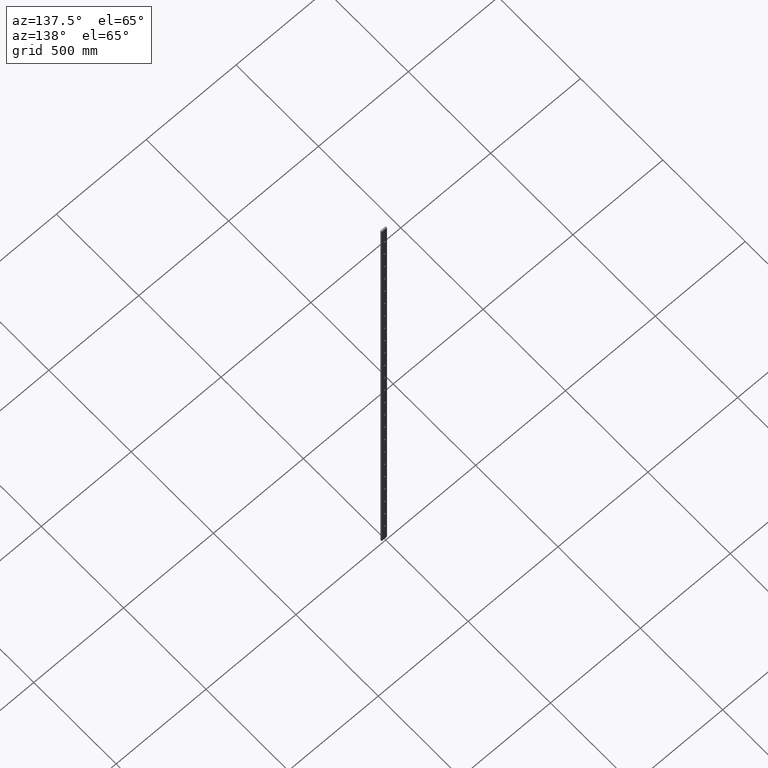
[diagram: clean part render]
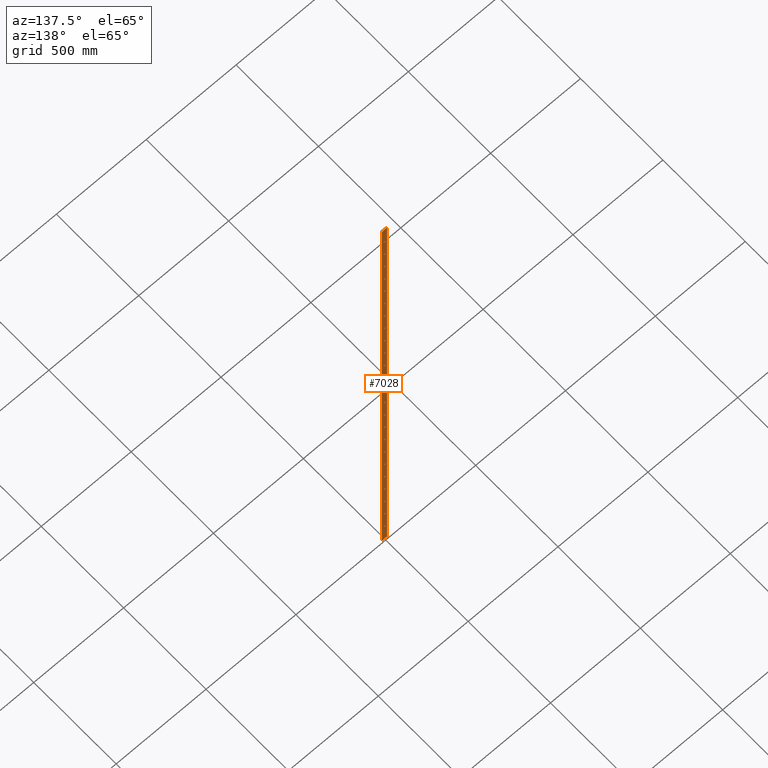
[diagram: same view with one face highlighted and labeled with its STEP entity id]
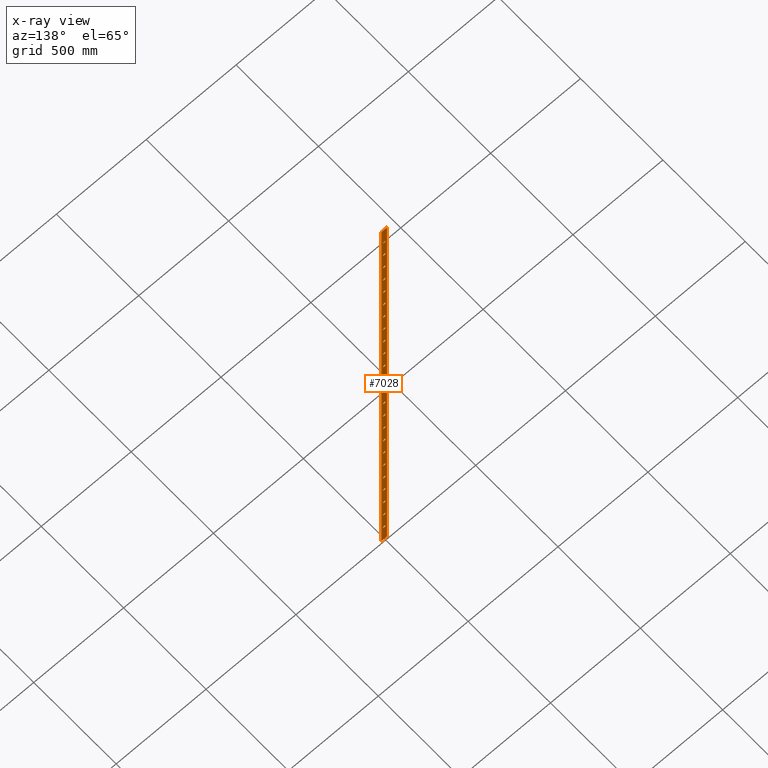
[diagram: x-ray of the same camera — body ghosted, the highlighted face saturated]
A machine part, auxiliary view. The second image highlights one B-rep face of the part: STEP entity #7028.
The next image is the same camera in x-ray: the body ghosted, the highlighted face saturated — about 0% of this face is hidden behind the body in this view.
In plain terms, the highlighted planar face has unit normal (-0, 1, 0).
Its self-contained STEP definition (entity closure, byte-faithful):
#20 = AXIS2_PLACEMENT_3D ( 'NONE', #3667, #4853, #1305 ) ;
#28 = FACE_BOUND ( 'NONE', #2224, .T. ) ;
#47 = CARTESIAN_POINT ( 'NONE',  ( 15.00000000000000000, 7.999999999999998200, -2040.000000000000000 ) ) ;
#53 = CIRCLE ( 'NONE', #4595, 7.500000000000007100 ) ;
#56 = DIRECTION ( 'NONE',  ( -1.156482317317871200E-016, 1.000000000000000000, 0.0000000000000000000 ) ) ;
#61 = VECTOR ( 'NONE', #6620, 1000.000000000000000 ) ;
#102 = CARTESIAN_POINT ( 'NONE',  ( 15.00000000000000000, 7.999999999999998200, -1087.500000000000200 ) ) ;
#105 = VERTEX_POINT ( 'NONE', #4749 ) ;
#125 = AXIS2_PLACEMENT_3D ( 'NONE', #2550, #6496, #3143 ) ;
#131 = EDGE_CURVE ( 'NONE', #7258, #5454, #7231, .T. ) ;
#149 = AXIS2_PLACEMENT_3D ( 'NONE', #4365, #781, #4954 ) ;
#178 = CARTESIAN_POINT ( 'NONE',  ( 15.00000000000000000, 7.999999999999998200, -1799.999999999999800 ) ) ;
#195 = AXIS2_PLACEMENT_3D ( 'NONE', #1118, #1107, #1095 ) ;
#214 = FACE_BOUND ( 'NONE', #3434, .T. ) ;
#228 = DIRECTION ( 'NONE',  ( -1.000000000000000000, -2.312964634635740500E-016, 0.0000000000000000000 ) ) ;
#239 = DIRECTION ( 'NONE',  ( -1.156482317317871200E-016, 1.000000000000000000, 0.0000000000000000000 ) ) ;
#245 = CIRCLE ( 'NONE', #149, 7.500000000000007100 ) ;
#256 = DIRECTION ( 'NONE',  ( -1.000000000000000000, -2.312964634635740500E-016, 0.0000000000000000000 ) ) ;
#261 = VERTEX_POINT ( 'NONE', #4384 ) ;
#340 = CIRCLE ( 'NONE', #6250, 7.500000000000007100 ) ;
#345 = CARTESIAN_POINT ( 'NONE',  ( 15.00000000000000000, 7.999999999999998200, -2887.499999999999500 ) ) ;
#354 = AXIS2_PLACEMENT_3D ( 'NONE', #3833, #3809, #3831 ) ;
#363 = EDGE_CURVE ( 'NONE', #105, #4011, #6400, .T. ) ;
#397 = ORIENTED_EDGE ( 'NONE', *, *, #7241, .F. ) ;
#401 = DIRECTION ( 'NONE',  ( -1.156482317317871200E-016, 1.000000000000000000, 0.0000000000000000000 ) ) ;
#402 = CARTESIAN_POINT ( 'NONE',  ( 15.00000000000000000, 7.999999999999998200, -1207.500000000000200 ) ) ;
#409 = FACE_BOUND ( 'NONE', #1279, .T. ) ;
#416 = CARTESIAN_POINT ( 'NONE',  ( 30.00000000000000000, 8.000000000000000000, 0.0000000000000000000 ) ) ;
#429 = AXIS2_PLACEMENT_3D ( 'NONE', #4636, #1082, #5211 ) ;
#447 = DIRECTION ( 'NONE',  ( -1.000000000000000000, -2.312964634635740500E-016, 0.0000000000000000000 ) ) ;
#450 = ORIENTED_EDGE ( 'NONE', *, *, #6342, .F. ) ;
#458 = CARTESIAN_POINT ( 'NONE',  ( 15.00000000000000200, 7.999999999999998200, -2752.500000000000000 ) ) ;
#473 = AXIS2_PLACEMENT_3D ( 'NONE', #6185, #2807, #6696 ) ;
#491 = EDGE_CURVE ( 'NONE', #5772, #5519, #2891, .T. ) ;
#502 = DIRECTION ( 'NONE',  ( -1.000000000000000000, -2.312964634635740500E-016, 0.0000000000000000000 ) ) ;
#505 = DIRECTION ( 'NONE',  ( -1.156482317317871200E-016, 1.000000000000000000, 0.0000000000000000000 ) ) ;
#510 = CARTESIAN_POINT ( 'NONE',  ( 15.00000000000000000, 7.999999999999998200, -1799.999999999999800 ) ) ;
#515 = ORIENTED_EDGE ( 'NONE', *, *, #6908, .F. ) ;
#522 = DIRECTION ( 'NONE',  ( -1.156482317317871200E-016, 1.000000000000000000, 0.0000000000000000000 ) ) ;
#529 = VERTEX_POINT ( 'NONE', #3793 ) ;
#536 = CARTESIAN_POINT ( 'NONE',  ( 15.00000000000000200, 7.999999999999998200, -472.5000000000000000 ) ) ;
#562 = DIRECTION ( 'NONE',  ( -1.000000000000000000, -2.312964634635740500E-016, 0.0000000000000000000 ) ) ;
#589 = VERTEX_POINT ( 'NONE', #3710 ) ;
#592 = DIRECTION ( 'NONE',  ( -1.000000000000000000, -2.312964634635740500E-016, 0.0000000000000000000 ) ) ;
#594 = FACE_BOUND ( 'NONE', #5563, .T. ) ;
#595 = DIRECTION ( 'NONE',  ( -1.156482317317871200E-016, 1.000000000000000000, 0.0000000000000000000 ) ) ;
#602 = CARTESIAN_POINT ( 'NONE',  ( 15.00000000000000000, 7.999999999999998200, -2280.000000000000500 ) ) ;
#632 = CARTESIAN_POINT ( 'NONE',  ( 15.00000000000000200, 7.999999999999998200, -1072.500000000000000 ) ) ;
#633 = EDGE_LOOP ( 'NONE', ( #6192, #4940 ) ) ;
#639 = AXIS2_PLACEMENT_3D ( 'NONE', #5285, #1769, #5798 ) ;
#657 = DIRECTION ( 'NONE',  ( -1.000000000000000000, -2.312964634635740500E-016, 0.0000000000000000000 ) ) ;
#669 = DIRECTION ( 'NONE',  ( -1.000000000000000000, -2.312964634635740500E-016, 0.0000000000000000000 ) ) ;
#689 = DIRECTION ( 'NONE',  ( -1.156482317317871200E-016, 1.000000000000000000, 0.0000000000000000000 ) ) ;
#694 = CARTESIAN_POINT ( 'NONE',  ( 15.00000000000000000, 7.999999999999998200, -2160.000000000000000 ) ) ;
#728 = EDGE_CURVE ( 'NONE', #7092, #2089, #2135, .T. ) ;
#764 = CARTESIAN_POINT ( 'NONE',  ( 0.0000000000000000000, 7.999999999999996400, 0.0000000000000000000 ) ) ;
#773 = FACE_BOUND ( 'NONE', #1179, .T. ) ;
#774 = DIRECTION ( 'NONE',  ( -1.000000000000000000, -2.312964634635740500E-016, 0.0000000000000000000 ) ) ;
#781 = DIRECTION ( 'NONE',  ( -1.156482317317871200E-016, 1.000000000000000000, 0.0000000000000000000 ) ) ;
#815 = EDGE_LOOP ( 'NONE', ( #2851, #966 ) ) ;
#825 = VERTEX_POINT ( 'NONE', #3259 ) ;
#881 = VERTEX_POINT ( 'NONE', #3111 ) ;
#911 = CIRCLE ( 'NONE', #3983, 7.500000000000007100 ) ;
#922 = CARTESIAN_POINT ( 'NONE',  ( 15.00000000000000000, 7.999999999999998200, -2647.500000000000000 ) ) ;
#956 = VERTEX_POINT ( 'NONE', #2338 ) ;
#966 = ORIENTED_EDGE ( 'NONE', *, *, #2146, .F. ) ;
#982 = ORIENTED_EDGE ( 'NONE', *, *, #4806, .F. ) ;
#1015 = CIRCLE ( 'NONE', #4528, 7.500000000000007100 ) ;
#1018 = EDGE_LOOP ( 'NONE', ( #5216, #2624 ) ) ;
#1037 = AXIS2_PLACEMENT_3D ( 'NONE', #6042, #2630, #6552 ) ;
#1066 = DIRECTION ( 'NONE',  ( -1.156482317317871200E-016, 1.000000000000000000, 0.0000000000000000000 ) ) ;
#1067 = VERTEX_POINT ( 'NONE', #2115 ) ;
#1082 = DIRECTION ( 'NONE',  ( -1.156482317317871200E-016, 1.000000000000000000, 0.0000000000000000000 ) ) ;
#1095 = DIRECTION ( 'NONE',  ( -1.000000000000000000, -2.312964634635740500E-016, 0.0000000000000000000 ) ) ;
#1107 = DIRECTION ( 'NONE',  ( -1.156482317317871200E-016, 1.000000000000000000, 0.0000000000000000000 ) ) ;
#1118 = CARTESIAN_POINT ( 'NONE',  ( 15.00000000000000000, 7.999999999999998200, -600.0000000000000000 ) ) ;
#1124 = DIRECTION ( 'NONE',  ( -1.156482317317871200E-016, 1.000000000000000000, 0.0000000000000000000 ) ) ;
#1148 = VERTEX_POINT ( 'NONE', #1187 ) ;
#1162 = EDGE_CURVE ( 'NONE', #2960, #881, #5495, .T. ) ;
#1179 = EDGE_LOOP ( 'NONE', ( #6286, #6431 ) ) ;
#1187 = CARTESIAN_POINT ( 'NONE',  ( 15.00000000000000200, 7.999999999999998200, -952.4999999999998900 ) ) ;
#1195 = CARTESIAN_POINT ( 'NONE',  ( 15.00000000000000000, 7.999999999999998200, -607.4999999999998900 ) ) ;
#1213 = EDGE_LOOP ( 'NONE', ( #5136, #1229 ) ) ;
#1229 = ORIENTED_EDGE ( 'NONE', *, *, #3451, .F. ) ;
#1242 = CARTESIAN_POINT ( 'NONE',  ( 15.00000000000000000, 7.999999999999998200, -360.0000000000000000 ) ) ;
#1250 = ORIENTED_EDGE ( 'NONE', *, *, #3022, .F. ) ;
#1279 = EDGE_LOOP ( 'NONE', ( #1250, #4990 ) ) ;
#1293 = CIRCLE ( 'NONE', #4988, 7.500000000000007100 ) ;
#1305 = DIRECTION ( 'NONE',  ( -1.000000000000000000, -1.156482317317871200E-016, 0.0000000000000000000 ) ) ;
#1309 = AXIS2_PLACEMENT_3D ( 'NONE', #3333, #7167, #3936 ) ;
#1337 = EDGE_CURVE ( 'NONE', #6118, #3956, #53, .T. ) ;
#1373 = VERTEX_POINT ( 'NONE', #536 ) ;
#1374 = EDGE_CURVE ( 'NONE', #7174, #3640, #1293, .T. ) ;
#1390 = CIRCLE ( 'NONE', #639, 7.500000000000007100 ) ;
#1451 = FACE_BOUND ( 'NONE', #4181, .T. ) ;
#1454 = AXIS2_PLACEMENT_3D ( 'NONE', #6834, #3565, #7354 ) ;
#1456 = DIRECTION ( 'NONE',  ( -1.156482317317871200E-016, 1.000000000000000000, 0.0000000000000000000 ) ) ;
#1490 = VERTEX_POINT ( 'NONE', #6758 ) ;
#1541 = ORIENTED_EDGE ( 'NONE', *, *, #1337, .F. ) ;
#1572 = EDGE_CURVE ( 'NONE', #5314, #4468, #1928, .T. ) ;
#1634 = FACE_BOUND ( 'NONE', #6564, .T. ) ;
#1673 = VERTEX_POINT ( 'NONE', #5576 ) ;
#1677 = DIRECTION ( 'NONE',  ( -1.000000000000000000, -2.312964634635740500E-016, 0.0000000000000000000 ) ) ;
#1708 = EDGE_CURVE ( 'NONE', #1781, #5730, #6308, .T. ) ;
#1714 = DIRECTION ( 'NONE',  ( -1.156482317317871200E-016, 1.000000000000000000, 0.0000000000000000000 ) ) ;
#1729 = CARTESIAN_POINT ( 'NONE',  ( 15.00000000000000000, 7.999999999999998200, -2520.000000000000000 ) ) ;
#1730 = VERTEX_POINT ( 'NONE', #4941 ) ;
#1744 = ORIENTED_EDGE ( 'NONE', *, *, #5120, .F. ) ;
#1769 = DIRECTION ( 'NONE',  ( -1.156482317317871200E-016, 1.000000000000000000, 0.0000000000000000000 ) ) ;
#1773 = EDGE_LOOP ( 'NONE', ( #4756, #2487, #3476, #2879 ) ) ;
#1781 = VERTEX_POINT ( 'NONE', #2854 ) ;
#1784 = ORIENTED_EDGE ( 'NONE', *, *, #1572, .F. ) ;
#1818 = FACE_BOUND ( 'NONE', #3246, .T. ) ;
#1826 = VERTEX_POINT ( 'NONE', #2394 ) ;
#1830 = DIRECTION ( 'NONE',  ( -1.000000000000000000, -2.312964634635740500E-016, 0.0000000000000000000 ) ) ;
#1854 = EDGE_CURVE ( 'NONE', #7165, #529, #3900, .T. ) ;
#1878 = CARTESIAN_POINT ( 'NONE',  ( 15.00000000000000000, 7.999999999999998200, -2407.499999999999500 ) ) ;
#1928 = CIRCLE ( 'NONE', #6734, 7.500000000000007100 ) ;
#1939 = CIRCLE ( 'NONE', #2226, 7.500000000000007100 ) ;
#1941 = CIRCLE ( 'NONE', #6806, 7.500000000000007100 ) ;
#1979 = CARTESIAN_POINT ( 'NONE',  ( 15.00000000000000000, 7.999999999999998200, -120.0000000000000000 ) ) ;
#2000 = FACE_BOUND ( 'NONE', #7093, .T. ) ;
#2027 = CARTESIAN_POINT ( 'NONE',  ( 15.00000000000000000, 7.999999999999998200, -2167.500000000000000 ) ) ;
#2045 = CARTESIAN_POINT ( 'NONE',  ( 15.00000000000000000, 7.999999999999998200, -1447.500000000000000 ) ) ;
#2071 = DIRECTION ( 'NONE',  ( -1.156482317317871200E-016, 1.000000000000000000, 0.0000000000000000000 ) ) ;
#2089 = VERTEX_POINT ( 'NONE', #2785 ) ;
#2107 = AXIS2_PLACEMENT_3D ( 'NONE', #4661, #4613, #4653 ) ;
#2112 = EDGE_LOOP ( 'NONE', ( #6547, #3999 ) ) ;
#2115 = CARTESIAN_POINT ( 'NONE',  ( 15.00000000000000200, 7.999999999999998200, -1672.500000000000000 ) ) ;
#2118 = CARTESIAN_POINT ( 'NONE',  ( 15.00000000000000000, 7.999999999999998200, -1687.500000000000200 ) ) ;
#2135 = CIRCLE ( 'NONE', #3162, 7.500000000000007100 ) ;
#2146 = EDGE_CURVE ( 'NONE', #5730, #1781, #2978, .T. ) ;
#2169 = CARTESIAN_POINT ( 'NONE',  ( 0.0000000000000000000, 7.999999999999996400, -3000.000000000000000 ) ) ;
#2202 = DIRECTION ( 'NONE',  ( -1.156482317317871200E-016, 1.000000000000000000, 0.0000000000000000000 ) ) ;
#2207 = DIRECTION ( 'NONE',  ( -1.000000000000000000, -2.312964634635740500E-016, 0.0000000000000000000 ) ) ;
#2224 = EDGE_LOOP ( 'NONE', ( #397, #7334 ) ) ;
#2225 = DIRECTION ( 'NONE',  ( -1.156482317317871200E-016, 1.000000000000000000, 0.0000000000000000000 ) ) ;
#2226 = AXIS2_PLACEMENT_3D ( 'NONE', #7077, #3836, #256 ) ;
#2229 = ORIENTED_EDGE ( 'NONE', *, *, #1374, .F. ) ;
#2245 = CARTESIAN_POINT ( 'NONE',  ( 15.00000000000000000, 7.999999999999998200, -720.0000000000000000 ) ) ;
#2276 = VERTEX_POINT ( 'NONE', #764 ) ;
#2290 = EDGE_CURVE ( 'NONE', #4468, #5314, #5001, .T. ) ;
#2294 = ORIENTED_EDGE ( 'NONE', *, *, #4393, .F. ) ;
#2315 = AXIS2_PLACEMENT_3D ( 'NONE', #2245, #2225, #2207 ) ;
#2322 = CIRCLE ( 'NONE', #4673, 7.500000000000007100 ) ;
#2326 = VERTEX_POINT ( 'NONE', #458 ) ;
#2329 = CIRCLE ( 'NONE', #7096, 7.500000000000007100 ) ;
#2338 = CARTESIAN_POINT ( 'NONE',  ( 15.00000000000000200, 7.999999999999998200, -1312.499999999999800 ) ) ;
#2371 = EDGE_CURVE ( 'NONE', #3183, #1673, #6231, .T. ) ;
#2394 = CARTESIAN_POINT ( 'NONE',  ( 15.00000000000000400, 7.999999999999998200, -2392.500000000000000 ) ) ;
#2419 = EDGE_LOOP ( 'NONE', ( #5472, #5534 ) ) ;
#2453 = CARTESIAN_POINT ( 'NONE',  ( 15.00000000000000000, 7.999999999999998200, -2287.500000000000000 ) ) ;
#2456 = EDGE_CURVE ( 'NONE', #4675, #7363, #245, .T. ) ;
#2459 = AXIS2_PLACEMENT_3D ( 'NONE', #4207, #4144, #4082 ) ;
#2487 = ORIENTED_EDGE ( 'NONE', *, *, #5973, .F. ) ;
#2533 = EDGE_CURVE ( 'NONE', #1148, #4031, #3057, .T. ) ;
#2550 = CARTESIAN_POINT ( 'NONE',  ( 15.00000000000000000, 7.999999999999998200, -1080.000000000000000 ) ) ;
#2596 = DIRECTION ( 'NONE',  ( -1.000000000000000000, -2.312964634635740500E-016, 0.0000000000000000000 ) ) ;
#2602 = CARTESIAN_POINT ( 'NONE',  ( 15.00000000000000200, 7.999999999999998200, -2032.500000000000200 ) ) ;
#2605 = CIRCLE ( 'NONE', #5542, 7.500000000000007100 ) ;
#2608 = VECTOR ( 'NONE', #2781, 1000.000000000000000 ) ;
#2615 = ORIENTED_EDGE ( 'NONE', *, *, #5716, .F. ) ;
#2616 = EDGE_CURVE ( 'NONE', #4466, #1373, #5729, .T. ) ;
#2624 = ORIENTED_EDGE ( 'NONE', *, *, #4238, .F. ) ;
#2630 = DIRECTION ( 'NONE',  ( -1.156482317317871200E-016, 1.000000000000000000, 0.0000000000000000000 ) ) ;
#2651 = VERTEX_POINT ( 'NONE', #5750 ) ;
#2655 = DIRECTION ( 'NONE',  ( -1.156482317317871200E-016, 1.000000000000000000, 0.0000000000000000000 ) ) ;
#2688 = ORIENTED_EDGE ( 'NONE', *, *, #491, .F. ) ;
#2730 = EDGE_CURVE ( 'NONE', #1730, #2651, #6474, .T. ) ;
#2752 = ORIENTED_EDGE ( 'NONE', *, *, #131, .F. ) ;
#2755 = DIRECTION ( 'NONE',  ( -1.156482317317871200E-016, 1.000000000000000000, 0.0000000000000000000 ) ) ;
#2781 = DIRECTION ( 'NONE',  ( 0.0000000000000000000, 0.0000000000000000000, 1.000000000000000000 ) ) ;
#2785 = CARTESIAN_POINT ( 'NONE',  ( 15.00000000000000000, 7.999999999999998200, -2527.500000000000000 ) ) ;
#2807 = DIRECTION ( 'NONE',  ( -1.156482317317871200E-016, 1.000000000000000000, 0.0000000000000000000 ) ) ;
#2851 = ORIENTED_EDGE ( 'NONE', *, *, #1708, .F. ) ;
#2854 = CARTESIAN_POINT ( 'NONE',  ( 15.00000000000000000, 7.999999999999998200, -727.5000000000000000 ) ) ;
#2860 = CARTESIAN_POINT ( 'NONE',  ( 15.00000000000000000, 7.999999999999998200, -1567.500000000000200 ) ) ;
#2879 = ORIENTED_EDGE ( 'NONE', *, *, #3845, .T. ) ;
#2891 = CIRCLE ( 'NONE', #354, 7.500000000000007100 ) ;
#2915 = EDGE_CURVE ( 'NONE', #261, #6687, #340, .T. ) ;
#2920 = DIRECTION ( 'NONE',  ( -1.156482317317871200E-016, 1.000000000000000000, 0.0000000000000000000 ) ) ;
#2960 = VERTEX_POINT ( 'NONE', #1195 ) ;
#2978 = CIRCLE ( 'NONE', #2315, 7.500000000000007100 ) ;
#2981 = CIRCLE ( 'NONE', #3332, 7.500000000000007100 ) ;
#2994 = AXIS2_PLACEMENT_3D ( 'NONE', #4671, #1124, #5240 ) ;
#3022 = EDGE_CURVE ( 'NONE', #1673, #3183, #7182, .T. ) ;
#3029 = FACE_BOUND ( 'NONE', #2419, .T. ) ;
#3051 = DIRECTION ( 'NONE',  ( -1.156482317317871200E-016, 1.000000000000000000, 0.0000000000000000000 ) ) ;
#3057 = CIRCLE ( 'NONE', #7053, 7.500000000000007100 ) ;
#3070 = DIRECTION ( 'NONE',  ( -1.156482317317871200E-016, 1.000000000000000000, 0.0000000000000000000 ) ) ;
#3073 = CIRCLE ( 'NONE', #4762, 7.500000000000007100 ) ;
#3094 = AXIS2_PLACEMENT_3D ( 'NONE', #6600, #3274, #7108 ) ;
#3101 = CARTESIAN_POINT ( 'NONE',  ( 15.00000000000000000, 7.999999999999998200, -2520.000000000000000 ) ) ;
#3111 = CARTESIAN_POINT ( 'NONE',  ( 15.00000000000000200, 7.999999999999998200, -592.5000000000000000 ) ) ;
#3122 = CARTESIAN_POINT ( 'NONE',  ( 15.00000000000000000, 7.999999999999998200, -2040.000000000000000 ) ) ;
#3133 = ORIENTED_EDGE ( 'NONE', *, *, #2290, .F. ) ;
#3143 = DIRECTION ( 'NONE',  ( -1.000000000000000000, -2.312964634635740500E-016, 0.0000000000000000000 ) ) ;
#3145 = CARTESIAN_POINT ( 'NONE',  ( 15.00000000000000000, 7.999999999999998200, -1200.000000000000200 ) ) ;
#3148 = AXIS2_PLACEMENT_3D ( 'NONE', #3976, #401, #4573 ) ;
#3162 = AXIS2_PLACEMENT_3D ( 'NONE', #1729, #1714, #1677 ) ;
#3183 = VERTEX_POINT ( 'NONE', #2602 ) ;
#3203 = EDGE_CURVE ( 'NONE', #5454, #7258, #3610, .T. ) ;
#3214 = ORIENTED_EDGE ( 'NONE', *, *, #2456, .F. ) ;
#3215 = FACE_BOUND ( 'NONE', #3622, .T. ) ;
#3246 = EDGE_LOOP ( 'NONE', ( #1744, #3214 ) ) ;
#3259 = CARTESIAN_POINT ( 'NONE',  ( 15.00000000000000000, 7.999999999999998200, -247.5000000000000000 ) ) ;
#3274 = DIRECTION ( 'NONE',  ( -1.156482317317871200E-016, 1.000000000000000000, 0.0000000000000000000 ) ) ;
#3304 = VERTEX_POINT ( 'NONE', #345 ) ;
#3311 = CARTESIAN_POINT ( 'NONE',  ( 15.00000000000000000, 7.999999999999998200, -847.4999999999998900 ) ) ;
#3312 = CARTESIAN_POINT ( 'NONE',  ( 15.00000000000000000, 7.999999999999998200, -480.0000000000000000 ) ) ;
#3332 = AXIS2_PLACEMENT_3D ( 'NONE', #6061, #2655, #6580 ) ;
#3333 = CARTESIAN_POINT ( 'NONE',  ( 15.00000000000000000, 7.999999999999998200, -2280.000000000000500 ) ) ;
#3346 = EDGE_CURVE ( 'NONE', #5543, #3304, #2322, .T. ) ;
#3348 = ORIENTED_EDGE ( 'NONE', *, *, #3682, .F. ) ;
#3398 = FACE_BOUND ( 'NONE', #4826, .T. ) ;
#3434 = EDGE_LOOP ( 'NONE', ( #2752, #4788 ) ) ;
#3451 = EDGE_CURVE ( 'NONE', #5464, #825, #1941, .T. ) ;
#3461 = DIRECTION ( 'NONE',  ( -1.156482317317871200E-016, 1.000000000000000000, 0.0000000000000000000 ) ) ;
#3468 = DIRECTION ( 'NONE',  ( -1.156482317317871200E-016, 1.000000000000000000, 0.0000000000000000000 ) ) ;
#3476 = ORIENTED_EDGE ( 'NONE', *, *, #363, .T. ) ;
#3493 = CIRCLE ( 'NONE', #6509, 7.500000000000007100 ) ;
#3511 = EDGE_LOOP ( 'NONE', ( #515, #6840 ) ) ;
#3540 = EDGE_CURVE ( 'NONE', #5519, #5772, #4730, .T. ) ;
#3556 = CARTESIAN_POINT ( 'NONE',  ( 15.00000000000000200, 7.999999999999998200, -2272.500000000000500 ) ) ;
#3565 = DIRECTION ( 'NONE',  ( -1.156482317317871200E-016, 1.000000000000000000, 0.0000000000000000000 ) ) ;
#3593 = FACE_BOUND ( 'NONE', #3511, .T. ) ;
#3610 = CIRCLE ( 'NONE', #3094, 7.500000000000007100 ) ;
#3614 = CIRCLE ( 'NONE', #3835, 7.500000000000007100 ) ;
#3620 = VECTOR ( 'NONE', #6724, 1000.000000000000000 ) ;
#3622 = EDGE_LOOP ( 'NONE', ( #2688, #7377 ) ) ;
#3638 = AXIS2_PLACEMENT_3D ( 'NONE', #1242, #5346, #1830 ) ;
#3640 = VERTEX_POINT ( 'NONE', #4973 ) ;
#3651 = CARTESIAN_POINT ( 'NONE',  ( 15.00000000000000000, 7.999999999999998200, -1560.000000000000000 ) ) ;
#3667 = CARTESIAN_POINT ( 'NONE',  ( 30.00000000000000000, 8.000000000000000000, -3000.000000000000000 ) ) ;
#3678 = AXIS2_PLACEMENT_3D ( 'NONE', #6759, #3468, #7281 ) ;
#3682 = EDGE_CURVE ( 'NONE', #5754, #1067, #2981, .T. ) ;
#3690 = DIRECTION ( 'NONE',  ( -1.000000000000000000, -2.312964634635740500E-016, 0.0000000000000000000 ) ) ;
#3710 = CARTESIAN_POINT ( 'NONE',  ( 15.00000000000000000, 7.999999999999998200, -1327.500000000000000 ) ) ;
#3716 = CARTESIAN_POINT ( 'NONE',  ( 15.00000000000000200, 7.999999999999998200, -1792.499999999999800 ) ) ;
#3718 = DIRECTION ( 'NONE',  ( -1.000000000000000000, -2.312964634635740500E-016, 0.0000000000000000000 ) ) ;
#3745 = DIRECTION ( 'NONE',  ( -1.000000000000000000, -2.312964634635740500E-016, 0.0000000000000000000 ) ) ;
#3750 = EDGE_CURVE ( 'NONE', #1373, #4466, #1015, .T. ) ;
#3760 = EDGE_CURVE ( 'NONE', #825, #5464, #6869, .T. ) ;
#3775 = FACE_BOUND ( 'NONE', #4062, .T. ) ;
#3793 = CARTESIAN_POINT ( 'NONE',  ( 15.00000000000000200, 7.999999999999998200, -1912.499999999999800 ) ) ;
#3797 = CARTESIAN_POINT ( 'NONE',  ( 15.00000000000000000, 7.999999999999998200, -127.5000000000000000 ) ) ;
#3809 = DIRECTION ( 'NONE',  ( -1.156482317317871200E-016, 1.000000000000000000, 0.0000000000000000000 ) ) ;
#3815 = DIRECTION ( 'NONE',  ( -1.156482317317871200E-016, 1.000000000000000000, 0.0000000000000000000 ) ) ;
#3825 = AXIS2_PLACEMENT_3D ( 'NONE', #3145, #6996, #3745 ) ;
#3826 = CARTESIAN_POINT ( 'NONE',  ( 15.00000000000000000, 7.999999999999998200, -2760.000000000000000 ) ) ;
#3831 = DIRECTION ( 'NONE',  ( -1.000000000000000000, -2.312964634635740500E-016, 0.0000000000000000000 ) ) ;
#3833 = CARTESIAN_POINT ( 'NONE',  ( 15.00000000000000000, 7.999999999999998200, -1080.000000000000000 ) ) ;
#3835 = AXIS2_PLACEMENT_3D ( 'NONE', #178, #4360, #774 ) ;
#3836 = DIRECTION ( 'NONE',  ( -1.156482317317871200E-016, 1.000000000000000000, 0.0000000000000000000 ) ) ;
#3845 = EDGE_CURVE ( 'NONE', #4011, #2276, #6561, .T. ) ;
#3900 = CIRCLE ( 'NONE', #4845, 7.500000000000007100 ) ;
#3921 = DIRECTION ( 'NONE',  ( -1.000000000000000000, -2.312964634635740500E-016, 0.0000000000000000000 ) ) ;
#3928 = CARTESIAN_POINT ( 'NONE',  ( 30.00000000000000000, 8.000000000000000000, 0.0000000000000000000 ) ) ;
#3936 = DIRECTION ( 'NONE',  ( -1.000000000000000000, -2.312964634635740500E-016, 0.0000000000000000000 ) ) ;
#3956 = VERTEX_POINT ( 'NONE', #3556 ) ;
#3972 = AXIS2_PLACEMENT_3D ( 'NONE', #4616, #1066, #5201 ) ;
#3976 = CARTESIAN_POINT ( 'NONE',  ( 15.00000000000000000, 7.999999999999998200, -2400.000000000000000 ) ) ;
#3983 = AXIS2_PLACEMENT_3D ( 'NONE', #5667, #2202, #6198 ) ;
#3999 = ORIENTED_EDGE ( 'NONE', *, *, #4400, .F. ) ;
#4011 = VERTEX_POINT ( 'NONE', #5843 ) ;
#4022 = DIRECTION ( 'NONE',  ( -1.156482317317871200E-016, 1.000000000000000000, 0.0000000000000000000 ) ) ;
#4025 = CARTESIAN_POINT ( 'NONE',  ( 15.00000000000000200, 7.999999999999998200, -232.4999999999999700 ) ) ;
#4031 = VERTEX_POINT ( 'NONE', #6383 ) ;
#4062 = EDGE_LOOP ( 'NONE', ( #4089, #6026 ) ) ;
#4082 = DIRECTION ( 'NONE',  ( -1.000000000000000000, -2.312964634635740500E-016, 0.0000000000000000000 ) ) ;
#4089 = ORIENTED_EDGE ( 'NONE', *, *, #7035, .F. ) ;
#4100 = CARTESIAN_POINT ( 'NONE',  ( 15.00000000000000000, 7.999999999999998200, -240.0000000000000000 ) ) ;
#4116 = DIRECTION ( 'NONE',  ( -1.000000000000000000, -1.156482317317871500E-016, 0.0000000000000000000 ) ) ;
#4126 = DIRECTION ( 'NONE',  ( -1.156482317317871200E-016, 1.000000000000000000, 0.0000000000000000000 ) ) ;
#4128 = ORIENTED_EDGE ( 'NONE', *, *, #4617, .F. ) ;
#4139 = CIRCLE ( 'NONE', #4172, 7.500000000000007100 ) ;
#4143 = VERTEX_POINT ( 'NONE', #1878 ) ;
#4144 = DIRECTION ( 'NONE',  ( -1.156482317317871200E-016, 1.000000000000000000, 0.0000000000000000000 ) ) ;
#4146 = CIRCLE ( 'NONE', #473, 7.500000000000007100 ) ;
#4172 = AXIS2_PLACEMENT_3D ( 'NONE', #7335, #4126, #562 ) ;
#4181 = EDGE_LOOP ( 'NONE', ( #7374, #2294 ) ) ;
#4207 = CARTESIAN_POINT ( 'NONE',  ( 15.00000000000000000, 7.999999999999998200, -720.0000000000000000 ) ) ;
#4226 = DIRECTION ( 'NONE',  ( -1.156482317317871200E-016, 1.000000000000000000, 0.0000000000000000000 ) ) ;
#4238 = EDGE_CURVE ( 'NONE', #881, #2960, #911, .T. ) ;
#4242 = DIRECTION ( 'NONE',  ( -1.000000000000000000, -2.312964634635740500E-016, 0.0000000000000000000 ) ) ;
#4286 = CARTESIAN_POINT ( 'NONE',  ( 30.00000000000000000, 8.000000000000000000, -3000.000000000000000 ) ) ;
#4360 = DIRECTION ( 'NONE',  ( -1.156482317317871200E-016, 1.000000000000000000, 0.0000000000000000000 ) ) ;
#4365 = CARTESIAN_POINT ( 'NONE',  ( 15.00000000000000000, 7.999999999999998200, -1560.000000000000000 ) ) ;
#4384 = CARTESIAN_POINT ( 'NONE',  ( 15.00000000000000400, 7.999999999999998200, -112.4999999999999900 ) ) ;
#4393 = EDGE_CURVE ( 'NONE', #2651, #1730, #1390, .T. ) ;
#4400 = EDGE_CURVE ( 'NONE', #2326, #5111, #5813, .T. ) ;
#4415 = DIRECTION ( 'NONE',  ( -1.000000000000000000, -2.312964634635740500E-016, 0.0000000000000000000 ) ) ;
#4417 = FACE_OUTER_BOUND ( 'NONE', #1773, .T. ) ;
#4428 = CARTESIAN_POINT ( 'NONE',  ( 15.00000000000000200, 7.999999999999998200, -712.4999999999998900 ) ) ;
#4433 = EDGE_LOOP ( 'NONE', ( #6395, #4635 ) ) ;
#4466 = VERTEX_POINT ( 'NONE', #5826 ) ;
#4468 = VERTEX_POINT ( 'NONE', #6352 ) ;
#4528 = AXIS2_PLACEMENT_3D ( 'NONE', #3312, #7152, #3921 ) ;
#4573 = DIRECTION ( 'NONE',  ( -1.000000000000000000, -2.312964634635740500E-016, 0.0000000000000000000 ) ) ;
#4595 = AXIS2_PLACEMENT_3D ( 'NONE', #602, #595, #592 ) ;
#4600 = FACE_BOUND ( 'NONE', #1018, .T. ) ;
#4613 = DIRECTION ( 'NONE',  ( -1.156482317317871200E-016, 1.000000000000000000, 0.0000000000000000000 ) ) ;
#4616 = CARTESIAN_POINT ( 'NONE',  ( 15.00000000000000000, 7.999999999999998200, -1319.999999999999800 ) ) ;
#4617 = EDGE_CURVE ( 'NONE', #3640, #7174, #3614, .T. ) ;
#4635 = ORIENTED_EDGE ( 'NONE', *, *, #5684, .F. ) ;
#4636 = CARTESIAN_POINT ( 'NONE',  ( 15.00000000000000000, 7.999999999999998200, -480.0000000000000000 ) ) ;
#4639 = CIRCLE ( 'NONE', #3148, 7.500000000000007100 ) ;
#4653 = DIRECTION ( 'NONE',  ( -1.000000000000000000, -2.312964634635740500E-016, 0.0000000000000000000 ) ) ;
#4661 = CARTESIAN_POINT ( 'NONE',  ( 15.00000000000000000, 7.999999999999998200, -1440.000000000000000 ) ) ;
#4671 = CARTESIAN_POINT ( 'NONE',  ( 15.00000000000000000, 7.999999999999998200, -1200.000000000000200 ) ) ;
#4673 = AXIS2_PLACEMENT_3D ( 'NONE', #7243, #4022, #447 ) ;
#4675 = VERTEX_POINT ( 'NONE', #7056 ) ;
#4689 = DIRECTION ( 'NONE',  ( -1.000000000000000000, -2.312964634635740500E-016, 0.0000000000000000000 ) ) ;
#4730 = CIRCLE ( 'NONE', #125, 7.500000000000007100 ) ;
#4749 = CARTESIAN_POINT ( 'NONE',  ( 30.00000000000000000, 8.000000000000000000, -3000.000000000000000 ) ) ;
#4756 = ORIENTED_EDGE ( 'NONE', *, *, #5395, .F. ) ;
#4762 = AXIS2_PLACEMENT_3D ( 'NONE', #6750, #3461, #7267 ) ;
#4788 = ORIENTED_EDGE ( 'NONE', *, *, #3203, .F. ) ;
#4794 = FACE_BOUND ( 'NONE', #633, .T. ) ;
#4806 = EDGE_CURVE ( 'NONE', #6687, #261, #2329, .T. ) ;
#4826 = EDGE_LOOP ( 'NONE', ( #3348, #5532 ) ) ;
#4845 = AXIS2_PLACEMENT_3D ( 'NONE', #5672, #5663, #5646 ) ;
#4853 = DIRECTION ( 'NONE',  ( -1.156482317317871200E-016, 1.000000000000000000, 0.0000000000000000000 ) ) ;
#4896 = CARTESIAN_POINT ( 'NONE',  ( 15.00000000000000200, 7.999999999999998200, -1192.500000000000200 ) ) ;
#4936 = EDGE_CURVE ( 'NONE', #3956, #6118, #6323, .T. ) ;
#4940 = ORIENTED_EDGE ( 'NONE', *, *, #5801, .F. ) ;
#4941 = CARTESIAN_POINT ( 'NONE',  ( 15.00000000000000000, 7.999999999999998200, -367.5000000000000000 ) ) ;
#4954 = DIRECTION ( 'NONE',  ( -1.000000000000000000, -2.312964634635740500E-016, 0.0000000000000000000 ) ) ;
#4969 = FACE_BOUND ( 'NONE', #5891, .T. ) ;
#4973 = CARTESIAN_POINT ( 'NONE',  ( 15.00000000000000000, 7.999999999999998200, -1807.499999999999800 ) ) ;
#4977 = CIRCLE ( 'NONE', #6621, 7.500000000000007100 ) ;
#4988 = AXIS2_PLACEMENT_3D ( 'NONE', #510, #505, #502 ) ;
#4990 = ORIENTED_EDGE ( 'NONE', *, *, #2371, .F. ) ;
#4997 = CARTESIAN_POINT ( 'NONE',  ( 15.00000000000000000, 7.999999999999998200, -1680.000000000000200 ) ) ;
#5001 = CIRCLE ( 'NONE', #5436, 7.500000000000007100 ) ;
#5013 = LINE ( 'NONE', #3928, #61 ) ;
#5097 = CIRCLE ( 'NONE', #1037, 7.500000000000007100 ) ;
#5111 = VERTEX_POINT ( 'NONE', #5881 ) ;
#5120 = EDGE_CURVE ( 'NONE', #7363, #4675, #5834, .T. ) ;
#5136 = ORIENTED_EDGE ( 'NONE', *, *, #3760, .F. ) ;
#5152 = FACE_BOUND ( 'NONE', #2112, .T. ) ;
#5201 = DIRECTION ( 'NONE',  ( -1.000000000000000000, -2.312964634635740500E-016, 0.0000000000000000000 ) ) ;
#5211 = DIRECTION ( 'NONE',  ( -1.000000000000000000, -2.312964634635740500E-016, 0.0000000000000000000 ) ) ;
#5216 = ORIENTED_EDGE ( 'NONE', *, *, #1162, .F. ) ;
#5240 = DIRECTION ( 'NONE',  ( -1.000000000000000000, -2.312964634635740500E-016, 0.0000000000000000000 ) ) ;
#5285 = CARTESIAN_POINT ( 'NONE',  ( 15.00000000000000000, 7.999999999999998200, -360.0000000000000000 ) ) ;
#5291 = AXIS2_PLACEMENT_3D ( 'NONE', #6140, #2755, #6655 ) ;
#5314 = VERTEX_POINT ( 'NONE', #2027 ) ;
#5346 = DIRECTION ( 'NONE',  ( -1.156482317317871200E-016, 1.000000000000000000, 0.0000000000000000000 ) ) ;
#5395 = EDGE_CURVE ( 'NONE', #7321, #2276, #5013, .T. ) ;
#5435 = EDGE_CURVE ( 'NONE', #1826, #4143, #4639, .T. ) ;
#5436 = AXIS2_PLACEMENT_3D ( 'NONE', #694, #689, #669 ) ;
#5440 = CARTESIAN_POINT ( 'NONE',  ( 15.00000000000000000, 7.999999999999998200, -1927.500000000000000 ) ) ;
#5452 = EDGE_CURVE ( 'NONE', #956, #589, #7275, .T. ) ;
#5454 = VERTEX_POINT ( 'NONE', #7206 ) ;
#5464 = VERTEX_POINT ( 'NONE', #4025 ) ;
#5467 = EDGE_CURVE ( 'NONE', #3304, #5543, #3073, .T. ) ;
#5472 = ORIENTED_EDGE ( 'NONE', *, *, #2616, .F. ) ;
#5490 = CIRCLE ( 'NONE', #5889, 7.500000000000007100 ) ;
#5495 = CIRCLE ( 'NONE', #195, 7.500000000000007100 ) ;
#5519 = VERTEX_POINT ( 'NONE', #632 ) ;
#5528 = DIRECTION ( 'NONE',  ( -1.000000000000000000, -2.312964634635740500E-016, 0.0000000000000000000 ) ) ;
#5532 = ORIENTED_EDGE ( 'NONE', *, *, #7245, .F. ) ;
#5534 = ORIENTED_EDGE ( 'NONE', *, *, #3750, .F. ) ;
#5542 = AXIS2_PLACEMENT_3D ( 'NONE', #7059, #3815, #228 ) ;
#5543 = VERTEX_POINT ( 'NONE', #6393 ) ;
#5552 = CARTESIAN_POINT ( 'NONE',  ( 15.00000000000000000, 7.999999999999998200, -960.0000000000000000 ) ) ;
#5563 = EDGE_LOOP ( 'NONE', ( #6520, #2615 ) ) ;
#5576 = CARTESIAN_POINT ( 'NONE',  ( 15.00000000000000000, 7.999999999999998200, -2047.499999999999800 ) ) ;
#5629 = VERTEX_POINT ( 'NONE', #4896 ) ;
#5646 = DIRECTION ( 'NONE',  ( -1.000000000000000000, -2.312964634635740500E-016, 0.0000000000000000000 ) ) ;
#5654 = LINE ( 'NONE', #6615, #2608 ) ;
#5662 = EDGE_LOOP ( 'NONE', ( #982, #6037 ) ) ;
#5663 = DIRECTION ( 'NONE',  ( -1.156482317317871200E-016, 1.000000000000000000, 0.0000000000000000000 ) ) ;
#5667 = CARTESIAN_POINT ( 'NONE',  ( 15.00000000000000000, 7.999999999999998200, -600.0000000000000000 ) ) ;
#5672 = CARTESIAN_POINT ( 'NONE',  ( 15.00000000000000000, 7.999999999999998200, -1920.000000000000000 ) ) ;
#5684 = EDGE_CURVE ( 'NONE', #529, #7165, #5097, .T. ) ;
#5716 = EDGE_CURVE ( 'NONE', #6830, #5761, #1939, .T. ) ;
#5717 = EDGE_LOOP ( 'NONE', ( #1541, #5784 ) ) ;
#5729 = CIRCLE ( 'NONE', #429, 7.500000000000007100 ) ;
#5730 = VERTEX_POINT ( 'NONE', #4428 ) ;
#5750 = CARTESIAN_POINT ( 'NONE',  ( 15.00000000000000200, 7.999999999999998200, -352.5000000000000000 ) ) ;
#5754 = VERTEX_POINT ( 'NONE', #2118 ) ;
#5761 = VERTEX_POINT ( 'NONE', #922 ) ;
#5766 = VERTEX_POINT ( 'NONE', #3311 ) ;
#5772 = VERTEX_POINT ( 'NONE', #102 ) ;
#5778 = CARTESIAN_POINT ( 'NONE',  ( 15.00000000000000200, 7.999999999999998200, -2512.500000000000000 ) ) ;
#5784 = ORIENTED_EDGE ( 'NONE', *, *, #4936, .F. ) ;
#5798 = DIRECTION ( 'NONE',  ( -1.000000000000000000, -2.312964634635740500E-016, 0.0000000000000000000 ) ) ;
#5801 = EDGE_CURVE ( 'NONE', #5629, #6822, #6155, .T. ) ;
#5813 = CIRCLE ( 'NONE', #1454, 7.500000000000007100 ) ;
#5826 = CARTESIAN_POINT ( 'NONE',  ( 15.00000000000000000, 7.999999999999998200, -487.5000000000000000 ) ) ;
#5834 = CIRCLE ( 'NONE', #5953, 7.500000000000007100 ) ;
#5843 = CARTESIAN_POINT ( 'NONE',  ( 0.0000000000000000000, 7.999999999999996400, -3000.000000000000000 ) ) ;
#5876 = FACE_BOUND ( 'NONE', #5662, .T. ) ;
#5881 = CARTESIAN_POINT ( 'NONE',  ( 15.00000000000000000, 7.999999999999998200, -2767.499999999999500 ) ) ;
#5889 = AXIS2_PLACEMENT_3D ( 'NONE', #4997, #1456, #5528 ) ;
#5891 = EDGE_LOOP ( 'NONE', ( #4128, #2229 ) ) ;
#5898 = PLANE ( 'NONE',  #20 ) ;
#5953 = AXIS2_PLACEMENT_3D ( 'NONE', #3651, #56, #4242 ) ;
#5973 = EDGE_CURVE ( 'NONE', #105, #7321, #5654, .T. ) ;
#6005 = ORIENTED_EDGE ( 'NONE', *, *, #2533, .F. ) ;
#6018 = DIRECTION ( 'NONE',  ( -1.156482317317871200E-016, 1.000000000000000000, 0.0000000000000000000 ) ) ;
#6026 = ORIENTED_EDGE ( 'NONE', *, *, #728, .F. ) ;
#6036 = AXIS2_PLACEMENT_3D ( 'NONE', #6420, #3070, #6930 ) ;
#6037 = ORIENTED_EDGE ( 'NONE', *, *, #2915, .F. ) ;
#6042 = CARTESIAN_POINT ( 'NONE',  ( 15.00000000000000000, 7.999999999999998200, -1920.000000000000000 ) ) ;
#6052 = FACE_BOUND ( 'NONE', #815, .T. ) ;
#6061 = CARTESIAN_POINT ( 'NONE',  ( 15.00000000000000000, 7.999999999999998200, -1680.000000000000200 ) ) ;
#6084 = DIRECTION ( 'NONE',  ( -1.000000000000000000, -2.312964634635740500E-016, 0.0000000000000000000 ) ) ;
#6118 = VERTEX_POINT ( 'NONE', #2453 ) ;
#6135 = EDGE_CURVE ( 'NONE', #5761, #6830, #4146, .T. ) ;
#6140 = CARTESIAN_POINT ( 'NONE',  ( 15.00000000000000000, 7.999999999999998200, -240.0000000000000000 ) ) ;
#6155 = CIRCLE ( 'NONE', #3825, 7.500000000000007100 ) ;
#6185 = CARTESIAN_POINT ( 'NONE',  ( 15.00000000000000000, 7.999999999999998200, -2640.000000000000000 ) ) ;
#6192 = ORIENTED_EDGE ( 'NONE', *, *, #6891, .F. ) ;
#6198 = DIRECTION ( 'NONE',  ( -1.000000000000000000, -2.312964634635740500E-016, 0.0000000000000000000 ) ) ;
#6206 = FACE_BOUND ( 'NONE', #6238, .T. ) ;
#6215 = EDGE_CURVE ( 'NONE', #1490, #5766, #6845, .T. ) ;
#6222 = CARTESIAN_POINT ( 'NONE',  ( 15.00000000000000200, 7.999999999999998200, -2632.500000000000500 ) ) ;
#6231 = CIRCLE ( 'NONE', #6820, 7.500000000000007100 ) ;
#6238 = EDGE_LOOP ( 'NONE', ( #7211, #7007 ) ) ;
#6243 = VECTOR ( 'NONE', #4116, 1000.000000000000000 ) ;
#6250 = AXIS2_PLACEMENT_3D ( 'NONE', #6278, #2920, #6796 ) ;
#6278 = CARTESIAN_POINT ( 'NONE',  ( 15.00000000000000000, 7.999999999999998200, -120.0000000000000000 ) ) ;
#6286 = ORIENTED_EDGE ( 'NONE', *, *, #5467, .F. ) ;
#6308 = CIRCLE ( 'NONE', #2459, 7.500000000000007100 ) ;
#6323 = CIRCLE ( 'NONE', #1309, 7.500000000000007100 ) ;
#6342 = EDGE_CURVE ( 'NONE', #4031, #1148, #4977, .T. ) ;
#6352 = CARTESIAN_POINT ( 'NONE',  ( 15.00000000000000400, 7.999999999999998200, -2152.500000000000500 ) ) ;
#6366 = FACE_BOUND ( 'NONE', #4433, .T. ) ;
#6383 = CARTESIAN_POINT ( 'NONE',  ( 15.00000000000000000, 7.999999999999998200, -967.5000000000000000 ) ) ;
#6393 = CARTESIAN_POINT ( 'NONE',  ( 15.00000000000000200, 7.999999999999998200, -2872.500000000000000 ) ) ;
#6395 = ORIENTED_EDGE ( 'NONE', *, *, #1854, .F. ) ;
#6400 = LINE ( 'NONE', #4286, #6243 ) ;
#6409 = CARTESIAN_POINT ( 'NONE',  ( 15.00000000000000000, 7.999999999999998200, -960.0000000000000000 ) ) ;
#6420 = CARTESIAN_POINT ( 'NONE',  ( 15.00000000000000000, 7.999999999999998200, -1319.999999999999800 ) ) ;
#6428 = DIRECTION ( 'NONE',  ( -1.000000000000000000, -2.312964634635740500E-016, 0.0000000000000000000 ) ) ;
#6431 = ORIENTED_EDGE ( 'NONE', *, *, #3346, .F. ) ;
#6449 = DIRECTION ( 'NONE',  ( -1.156482317317871200E-016, 1.000000000000000000, 0.0000000000000000000 ) ) ;
#6474 = CIRCLE ( 'NONE', #3638, 7.500000000000007100 ) ;
#6496 = DIRECTION ( 'NONE',  ( -1.156482317317871200E-016, 1.000000000000000000, 0.0000000000000000000 ) ) ;
#6509 = AXIS2_PLACEMENT_3D ( 'NONE', #3826, #239, #4415 ) ;
#6520 = ORIENTED_EDGE ( 'NONE', *, *, #6135, .F. ) ;
#6524 = CARTESIAN_POINT ( 'NONE',  ( 15.00000000000000000, 7.999999999999998200, -2160.000000000000000 ) ) ;
#6530 = FACE_BOUND ( 'NONE', #5717, .T. ) ;
#6547 = ORIENTED_EDGE ( 'NONE', *, *, #6729, .F. ) ;
#6552 = DIRECTION ( 'NONE',  ( -1.000000000000000000, -2.312964634635740500E-016, 0.0000000000000000000 ) ) ;
#6561 = LINE ( 'NONE', #2169, #3620 ) ;
#6564 = EDGE_LOOP ( 'NONE', ( #450, #6005 ) ) ;
#6580 = DIRECTION ( 'NONE',  ( -1.000000000000000000, -2.312964634635740500E-016, 0.0000000000000000000 ) ) ;
#6600 = CARTESIAN_POINT ( 'NONE',  ( 15.00000000000000000, 7.999999999999998200, -1440.000000000000000 ) ) ;
#6615 = CARTESIAN_POINT ( 'NONE',  ( 30.00000000000000000, 8.000000000000000000, -3000.000000000000000 ) ) ;
#6620 = DIRECTION ( 'NONE',  ( -1.000000000000000000, -1.156482317317871500E-016, 0.0000000000000000000 ) ) ;
#6621 = AXIS2_PLACEMENT_3D ( 'NONE', #6409, #3051, #6915 ) ;
#6655 = DIRECTION ( 'NONE',  ( -1.000000000000000000, -2.312964634635740500E-016, 0.0000000000000000000 ) ) ;
#6687 = VERTEX_POINT ( 'NONE', #3797 ) ;
#6696 = DIRECTION ( 'NONE',  ( -1.000000000000000000, -2.312964634635740500E-016, 0.0000000000000000000 ) ) ;
#6724 = DIRECTION ( 'NONE',  ( 0.0000000000000000000, 0.0000000000000000000, 1.000000000000000000 ) ) ;
#6729 = EDGE_CURVE ( 'NONE', #5111, #2326, #3493, .T. ) ;
#6734 = AXIS2_PLACEMENT_3D ( 'NONE', #6524, #6449, #6428 ) ;
#6750 = CARTESIAN_POINT ( 'NONE',  ( 15.00000000000000000, 7.999999999999998200, -2880.000000000000000 ) ) ;
#6758 = CARTESIAN_POINT ( 'NONE',  ( 15.00000000000000200, 7.999999999999998200, -832.5000000000000000 ) ) ;
#6759 = CARTESIAN_POINT ( 'NONE',  ( 15.00000000000000000, 7.999999999999998200, -840.0000000000000000 ) ) ;
#6796 = DIRECTION ( 'NONE',  ( -1.000000000000000000, -2.312964634635740500E-016, 0.0000000000000000000 ) ) ;
#6806 = AXIS2_PLACEMENT_3D ( 'NONE', #4100, #522, #4689 ) ;
#6820 = AXIS2_PLACEMENT_3D ( 'NONE', #3122, #6981, #3718 ) ;
#6822 = VERTEX_POINT ( 'NONE', #402 ) ;
#6830 = VERTEX_POINT ( 'NONE', #6222 ) ;
#6834 = CARTESIAN_POINT ( 'NONE',  ( 15.00000000000000000, 7.999999999999998200, -2760.000000000000000 ) ) ;
#6840 = ORIENTED_EDGE ( 'NONE', *, *, #5435, .F. ) ;
#6841 = CIRCLE ( 'NONE', #6036, 7.500000000000007100 ) ;
#6845 = CIRCLE ( 'NONE', #3678, 7.500000000000007100 ) ;
#6869 = CIRCLE ( 'NONE', #5291, 7.500000000000007100 ) ;
#6891 = EDGE_CURVE ( 'NONE', #6822, #5629, #7166, .T. ) ;
#6908 = EDGE_CURVE ( 'NONE', #4143, #1826, #4139, .T. ) ;
#6915 = DIRECTION ( 'NONE',  ( -1.000000000000000000, -2.312964634635740500E-016, 0.0000000000000000000 ) ) ;
#6930 = DIRECTION ( 'NONE',  ( -1.000000000000000000, -2.312964634635740500E-016, 0.0000000000000000000 ) ) ;
#6954 = DIRECTION ( 'NONE',  ( -1.156482317317871200E-016, 1.000000000000000000, 0.0000000000000000000 ) ) ;
#6981 = DIRECTION ( 'NONE',  ( -1.156482317317871200E-016, 1.000000000000000000, 0.0000000000000000000 ) ) ;
#6996 = DIRECTION ( 'NONE',  ( -1.156482317317871200E-016, 1.000000000000000000, 0.0000000000000000000 ) ) ;
#7007 = ORIENTED_EDGE ( 'NONE', *, *, #5452, .F. ) ;
#7018 = EDGE_CURVE ( 'NONE', #589, #956, #6841, .T. ) ;
#7028 = ADVANCED_FACE ( 'NONE', ( #773, #5152, #594, #3775, #3593, #6530, #2000, #409, #6366, #4969, #3398, #1818, #214, #6206, #4794, #3215, #1634, #28, #6052, #4600, #3029, #1451, #7246, #5876, #4417 ), #5898, .T. ) ;
#7035 = EDGE_CURVE ( 'NONE', #2089, #7092, #7075, .T. ) ;
#7052 = AXIS2_PLACEMENT_3D ( 'NONE', #3101, #6954, #3690 ) ;
#7053 = AXIS2_PLACEMENT_3D ( 'NONE', #5552, #2071, #6084 ) ;
#7056 = CARTESIAN_POINT ( 'NONE',  ( 15.00000000000000200, 7.999999999999998200, -1552.500000000000000 ) ) ;
#7059 = CARTESIAN_POINT ( 'NONE',  ( 15.00000000000000000, 7.999999999999998200, -840.0000000000000000 ) ) ;
#7075 = CIRCLE ( 'NONE', #7052, 7.500000000000007100 ) ;
#7077 = CARTESIAN_POINT ( 'NONE',  ( 15.00000000000000000, 7.999999999999998200, -2640.000000000000000 ) ) ;
#7092 = VERTEX_POINT ( 'NONE', #5778 ) ;
#7093 = EDGE_LOOP ( 'NONE', ( #1784, #3133 ) ) ;
#7096 = AXIS2_PLACEMENT_3D ( 'NONE', #1979, #6018, #2596 ) ;
#7108 = DIRECTION ( 'NONE',  ( -1.000000000000000000, -2.312964634635740500E-016, 0.0000000000000000000 ) ) ;
#7152 = DIRECTION ( 'NONE',  ( -1.156482317317871200E-016, 1.000000000000000000, 0.0000000000000000000 ) ) ;
#7165 = VERTEX_POINT ( 'NONE', #5440 ) ;
#7166 = CIRCLE ( 'NONE', #2994, 7.500000000000007100 ) ;
#7167 = DIRECTION ( 'NONE',  ( -1.156482317317871200E-016, 1.000000000000000000, 0.0000000000000000000 ) ) ;
#7174 = VERTEX_POINT ( 'NONE', #3716 ) ;
#7182 = CIRCLE ( 'NONE', #7274, 7.500000000000007100 ) ;
#7206 = CARTESIAN_POINT ( 'NONE',  ( 15.00000000000000200, 7.999999999999998200, -1432.499999999999800 ) ) ;
#7211 = ORIENTED_EDGE ( 'NONE', *, *, #7018, .F. ) ;
#7231 = CIRCLE ( 'NONE', #2107, 7.500000000000007100 ) ;
#7241 = EDGE_CURVE ( 'NONE', #5766, #1490, #2605, .T. ) ;
#7243 = CARTESIAN_POINT ( 'NONE',  ( 15.00000000000000000, 7.999999999999998200, -2880.000000000000000 ) ) ;
#7245 = EDGE_CURVE ( 'NONE', #1067, #5754, #5490, .T. ) ;
#7246 = FACE_BOUND ( 'NONE', #1213, .T. ) ;
#7258 = VERTEX_POINT ( 'NONE', #2045 ) ;
#7267 = DIRECTION ( 'NONE',  ( -1.000000000000000000, -2.312964634635740500E-016, 0.0000000000000000000 ) ) ;
#7274 = AXIS2_PLACEMENT_3D ( 'NONE', #47, #4226, #657 ) ;
#7275 = CIRCLE ( 'NONE', #3972, 7.500000000000007100 ) ;
#7281 = DIRECTION ( 'NONE',  ( -1.000000000000000000, -2.312964634635740500E-016, 0.0000000000000000000 ) ) ;
#7321 = VERTEX_POINT ( 'NONE', #416 ) ;
#7334 = ORIENTED_EDGE ( 'NONE', *, *, #6215, .F. ) ;
#7335 = CARTESIAN_POINT ( 'NONE',  ( 15.00000000000000000, 7.999999999999998200, -2400.000000000000000 ) ) ;
#7354 = DIRECTION ( 'NONE',  ( -1.000000000000000000, -2.312964634635740500E-016, 0.0000000000000000000 ) ) ;
#7363 = VERTEX_POINT ( 'NONE', #2860 ) ;
#7374 = ORIENTED_EDGE ( 'NONE', *, *, #2730, .F. ) ;
#7377 = ORIENTED_EDGE ( 'NONE', *, *, #3540, .F. ) ;